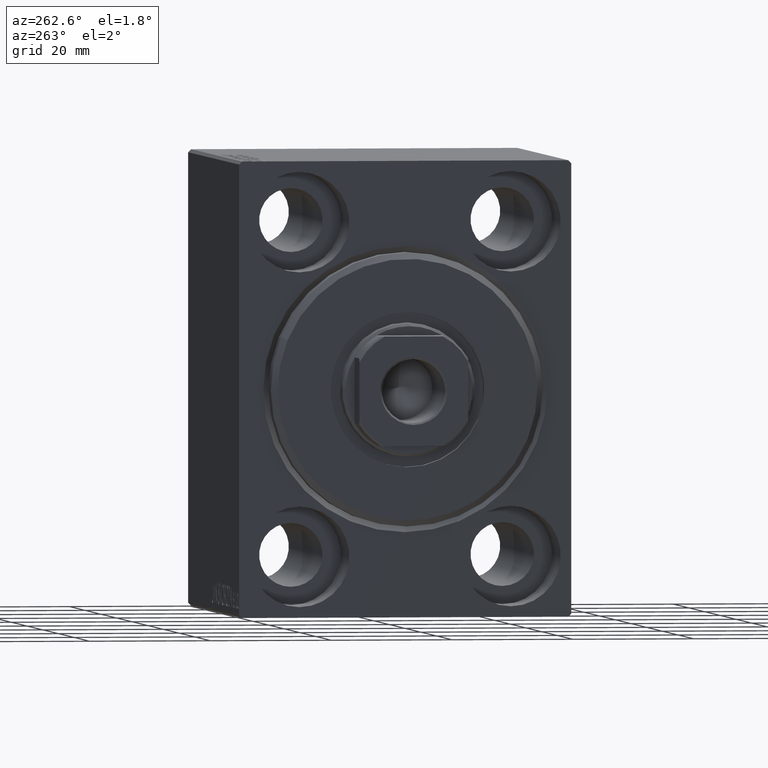
[diagram: clean part render]
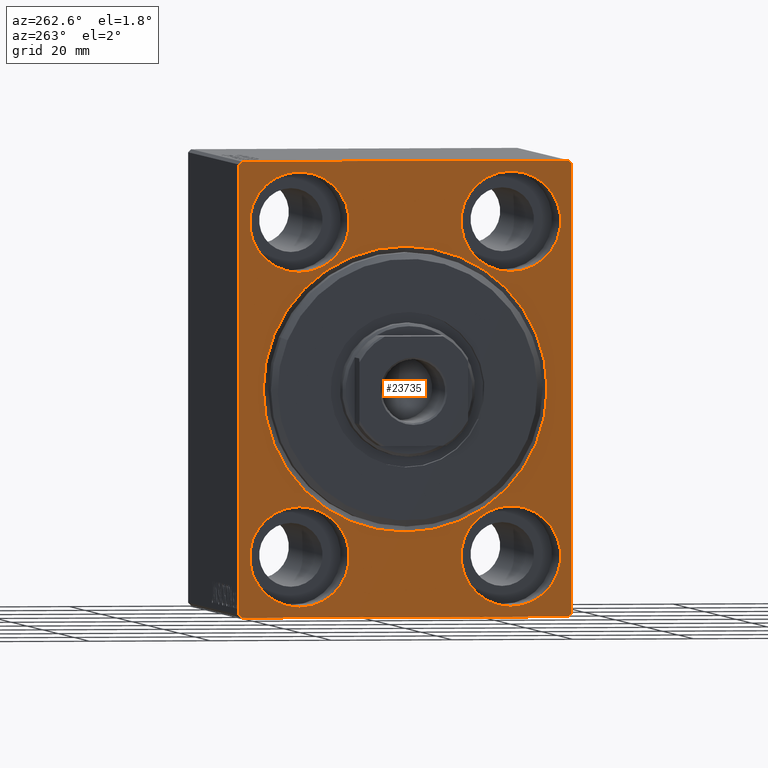
[diagram: same view with one face highlighted and labeled with its STEP entity id]
A machine part, auxiliary view. The second image highlights one B-rep face of the part: STEP entity #23735.
In plain terms, the highlighted planar face has unit normal (1, 0, 0).
Its self-contained STEP definition (entity closure, byte-faithful):
#246 = DIRECTION ( 'NONE',  ( 0.000000000000000000, 0.000000000000000000, 1.000000000000000000 ) ) ;
#478 = EDGE_CURVE ( 'NONE', #21505, #33055, #30573, .T. ) ;
#556 = ORIENTED_EDGE ( 'NONE', *, *, #11781, .T. ) ;
#896 = ORIENTED_EDGE ( 'NONE', *, *, #41385, .F. ) ;
#965 = FACE_BOUND ( 'NONE', #40348, .T. ) ;
#1022 = CARTESIAN_POINT ( 'NONE',  ( 0.000000000000000000, -27.50000000000000355, 37.00000000000001421 ) ) ;
#1216 = VERTEX_POINT ( 'NONE', #14954 ) ;
#1316 = DIRECTION ( 'NONE',  ( -1.000000000000000000, 0.000000000000000000, 0.000000000000000000 ) ) ;
#1453 = VERTEX_POINT ( 'NONE', #18438 ) ;
#1885 = VERTEX_POINT ( 'NONE', #24903 ) ;
#2264 = CARTESIAN_POINT ( 'NONE',  ( 0.000000000000000000, 27.50000000000000355, -37.50000000000000000 ) ) ;
#2432 = AXIS2_PLACEMENT_3D ( 'NONE', #39041, #12392, #17227 ) ;
#2782 = EDGE_CURVE ( 'NONE', #13436, #1453, #7124, .T. ) ;
#3126 = CARTESIAN_POINT ( 'NONE',  ( 0.000000000000000000, -17.49999999999999645, 27.49999999999999645 ) ) ;
#4210 = EDGE_LOOP ( 'NONE', ( #23417, #30986 ) ) ;
#4391 = DIRECTION ( 'NONE',  ( -0.000000000000000000, 0.7071067811865474617, 0.7071067811865474617 ) ) ;
#4675 = EDGE_CURVE ( 'NONE', #9798, #41175, #38373, .T. ) ;
#4750 = DIRECTION ( 'NONE',  ( 0.000000000000000000, 0.000000000000000000, 1.000000000000000000 ) ) ;
#4794 = AXIS2_PLACEMENT_3D ( 'NONE', #31147, #27839, #27416 ) ;
#4827 = EDGE_CURVE ( 'NONE', #41175, #9798, #39117, .T. ) ;
#6138 = VECTOR ( 'NONE', #32673, 1000.000000000000000 ) ;
#6391 = CARTESIAN_POINT ( 'NONE',  ( 0.000000000000000000, 27.00000000000001066, 37.50000000000000711 ) ) ;
#6756 = EDGE_LOOP ( 'NONE', ( #17562, #31209 ) ) ;
#6757 = CARTESIAN_POINT ( 'NONE',  ( 0.000000000000000000, -17.49999999999999645, 35.74999999999999289 ) ) ;
#6829 = VERTEX_POINT ( 'NONE', #39412 ) ;
#7124 = LINE ( 'NONE', #7778, #34129 ) ;
#7193 = DIRECTION ( 'NONE',  ( -1.000000000000000000, 0.000000000000000000, 0.000000000000000000 ) ) ;
#7778 = CARTESIAN_POINT ( 'NONE',  ( 0.000000000000000000, 27.50000000000000355, -37.00000000000000000 ) ) ;
#7990 = EDGE_CURVE ( 'NONE', #6829, #32191, #40576, .T. ) ;
#8162 = AXIS2_PLACEMENT_3D ( 'NONE', #43406, #39451, #39879 ) ;
#8223 = VECTOR ( 'NONE', #23816, 1000.000000000000000 ) ;
#8770 = VERTEX_POINT ( 'NONE', #16069 ) ;
#9032 = CIRCLE ( 'NONE', #40595, 8.250000000000000000 ) ;
#9407 = DIRECTION ( 'NONE',  ( -1.000000000000000000, 0.000000000000000000, 0.000000000000000000 ) ) ;
#9566 = DIRECTION ( 'NONE',  ( 0.000000000000000000, 0.000000000000000000, -1.000000000000000000 ) ) ;
#9798 = VERTEX_POINT ( 'NONE', #20332 ) ;
#9994 = LINE ( 'NONE', #43256, #40599 ) ;
#10263 = CARTESIAN_POINT ( 'NONE',  ( 0.000000000000000000, -17.50000000000000355, -35.75000000000000711 ) ) ;
#10571 = DIRECTION ( 'NONE',  ( 0.000000000000000000, 1.000000000000000000, 0.000000000000000000 ) ) ;
#11121 = FACE_OUTER_BOUND ( 'NONE', #23636, .T. ) ;
#11227 = VERTEX_POINT ( 'NONE', #6757 ) ;
#11334 = CARTESIAN_POINT ( 'NONE',  ( 0.000000000000000000, 0.000000000000000000, 0.000000000000000000 ) ) ;
#11781 = EDGE_CURVE ( 'NONE', #8770, #1216, #29952, .T. ) ;
#11981 = DIRECTION ( 'NONE',  ( 0.000000000000000000, -9.251858538542970348E-17, 1.000000000000000000 ) ) ;
#12392 = DIRECTION ( 'NONE',  ( -1.000000000000000000, 0.000000000000000000, 0.000000000000000000 ) ) ;
#12640 = CIRCLE ( 'NONE', #2432, 8.249999999999992895 ) ;
#12834 = VERTEX_POINT ( 'NONE', #39290 ) ;
#12872 = CARTESIAN_POINT ( 'NONE',  ( 0.000000000000000000, -27.50000000000000355, 37.50000000000000000 ) ) ;
#13063 = CARTESIAN_POINT ( 'NONE',  ( 0.000000000000000000, 27.50000000000000355, -37.00000000000000000 ) ) ;
#13436 = VERTEX_POINT ( 'NONE', #13063 ) ;
#14631 = EDGE_CURVE ( 'NONE', #8770, #12834, #19250, .T. ) ;
#14646 = FACE_BOUND ( 'NONE', #42191, .T. ) ;
#14954 = CARTESIAN_POINT ( 'NONE',  ( 0.000000000000000000, 27.49999999999999645, 37.00000000000001421 ) ) ;
#15632 = CARTESIAN_POINT ( 'NONE',  ( 0.000000000000000000, 17.50000000000000355, 19.25000000000000000 ) ) ;
#15853 = ORIENTED_EDGE ( 'NONE', *, *, #2782, .T. ) ;
#16069 = CARTESIAN_POINT ( 'NONE',  ( 0.000000000000000000, 27.00000000000001066, 37.50000000000000711 ) ) ;
#16783 = VERTEX_POINT ( 'NONE', #17842 ) ;
#16902 = DIRECTION ( 'NONE',  ( 0.000000000000000000, 0.000000000000000000, 1.000000000000000000 ) ) ;
#17227 = DIRECTION ( 'NONE',  ( 0.000000000000000000, 0.000000000000000000, 1.000000000000000000 ) ) ;
#17474 = CARTESIAN_POINT ( 'NONE',  ( 0.000000000000000000, 0.000000000000000000, 0.000000000000000000 ) ) ;
#17562 = ORIENTED_EDGE ( 'NONE', *, *, #20249, .F. ) ;
#17842 = CARTESIAN_POINT ( 'NONE',  ( 0.000000000000000000, -17.49999999999999645, 19.25000000000000000 ) ) ;
#18279 = CARTESIAN_POINT ( 'NONE',  ( 0.000000000000000000, -27.50000000000000355, 37.00000000000001421 ) ) ;
#18438 = CARTESIAN_POINT ( 'NONE',  ( 0.000000000000000000, 27.00000000000000355, -37.50000000000000000 ) ) ;
#19202 = DIRECTION ( 'NONE',  ( 0.000000000000000000, 0.000000000000000000, 1.000000000000000000 ) ) ;
#19250 = LINE ( 'NONE', #42375, #6138 ) ;
#19397 = EDGE_CURVE ( 'NONE', #24300, #12834, #34564, .T. ) ;
#19528 = ORIENTED_EDGE ( 'NONE', *, *, #29872, .F. ) ;
#20209 = CARTESIAN_POINT ( 'NONE',  ( 0.000000000000000000, -17.50000000000000355, -27.50000000000000355 ) ) ;
#20219 = EDGE_CURVE ( 'NONE', #16783, #11227, #12640, .T. ) ;
#20249 = EDGE_CURVE ( 'NONE', #11227, #16783, #29809, .T. ) ;
#20283 = LINE ( 'NONE', #27324, #23926 ) ;
#20332 = CARTESIAN_POINT ( 'NONE',  ( 0.000000000000000000, 2.877919977996282293E-15, -23.50000000000001776 ) ) ;
#20647 = DIRECTION ( 'NONE',  ( 0.000000000000000000, 0.000000000000000000, 1.000000000000000000 ) ) ;
#21041 = VERTEX_POINT ( 'NONE', #22990 ) ;
#21063 = VECTOR ( 'NONE', #9566, 1000.000000000000000 ) ;
#21100 = ORIENTED_EDGE ( 'NONE', *, *, #4827, .T. ) ;
#21379 = CARTESIAN_POINT ( 'NONE',  ( 0.000000000000000000, 17.49999999999999645, -27.50000000000000355 ) ) ;
#21475 = AXIS2_PLACEMENT_3D ( 'NONE', #11334, #24577, #31818 ) ;
#21505 = VERTEX_POINT ( 'NONE', #36346 ) ;
#21705 = FACE_BOUND ( 'NONE', #6756, .T. ) ;
#22990 = CARTESIAN_POINT ( 'NONE',  ( 0.000000000000000000, -27.50000000000000355, -37.00000000000000000 ) ) ;
#23417 = ORIENTED_EDGE ( 'NONE', *, *, #478, .F. ) ;
#23636 = EDGE_LOOP ( 'NONE', ( #24381, #38671, #43012, #556, #896, #15853, #39313, #39228 ) ) ;
#23735 = ADVANCED_FACE ( 'NONE', ( #14646, #41507, #21705, #965, #27859, #11121 ), #35116, .F. ) ;
#23816 = DIRECTION ( 'NONE',  ( -0.000000000000000000, 0.7071067811865426878, -0.7071067811865524577 ) ) ;
#23890 = DIRECTION ( 'NONE',  ( 0.000000000000000000, -0.7071067811865474617, -0.7071067811865474617 ) ) ;
#23926 = VECTOR ( 'NONE', #10571, 1000.000000000000000 ) ;
#24300 = VERTEX_POINT ( 'NONE', #1022 ) ;
#24381 = ORIENTED_EDGE ( 'NONE', *, *, #40464, .F. ) ;
#24577 = DIRECTION ( 'NONE',  ( 1.000000000000000000, 0.000000000000000000, 0.000000000000000000 ) ) ;
#24903 = CARTESIAN_POINT ( 'NONE',  ( 0.000000000000000000, -27.00000000000000355, -37.50000000000000000 ) ) ;
#25988 = AXIS2_PLACEMENT_3D ( 'NONE', #36278, #9407, #16902 ) ;
#27324 = CARTESIAN_POINT ( 'NONE',  ( 0.000000000000000000, -27.50000000000000355, -37.50000000000000000 ) ) ;
#27416 = DIRECTION ( 'NONE',  ( 0.000000000000000000, 0.000000000000000000, 1.000000000000000000 ) ) ;
#27839 = DIRECTION ( 'NONE',  ( -1.000000000000000000, 0.000000000000000000, 0.000000000000000000 ) ) ;
#27859 = FACE_BOUND ( 'NONE', #4210, .T. ) ;
#28130 = VECTOR ( 'NONE', #11981, 1000.000000000000000 ) ;
#28205 = DIRECTION ( 'NONE',  ( 0.000000000000000000, 0.000000000000000000, 1.000000000000000000 ) ) ;
#29000 = CARTESIAN_POINT ( 'NONE',  ( 0.000000000000000000, 17.50000000000000355, 35.74999999999999289 ) ) ;
#29157 = AXIS2_PLACEMENT_3D ( 'NONE', #20209, #7193, #20647 ) ;
#29421 = VERTEX_POINT ( 'NONE', #15632 ) ;
#29809 = CIRCLE ( 'NONE', #43174, 8.249999999999992895 ) ;
#29872 = EDGE_CURVE ( 'NONE', #29421, #43443, #30031, .T. ) ;
#29952 = LINE ( 'NONE', #6391, #8223 ) ;
#30031 = CIRCLE ( 'NONE', #39865, 8.249999999999992895 ) ;
#30038 = CARTESIAN_POINT ( 'NONE',  ( 0.000000000000000000, 0.000000000000000000, 23.50000000000001776 ) ) ;
#30124 = EDGE_CURVE ( 'NONE', #1885, #21041, #9994, .T. ) ;
#30191 = CIRCLE ( 'NONE', #25988, 8.249999999999992895 ) ;
#30327 = ORIENTED_EDGE ( 'NONE', *, *, #40925, .F. ) ;
#30443 = DIRECTION ( 'NONE',  ( -1.000000000000000000, 0.000000000000000000, 0.000000000000000000 ) ) ;
#30573 = CIRCLE ( 'NONE', #29157, 8.250000000000000000 ) ;
#30903 = ORIENTED_EDGE ( 'NONE', *, *, #7990, .F. ) ;
#30975 = VECTOR ( 'NONE', #4391, 1000.000000000000114 ) ;
#30986 = ORIENTED_EDGE ( 'NONE', *, *, #34375, .F. ) ;
#31147 = CARTESIAN_POINT ( 'NONE',  ( 0.000000000000000000, 17.49999999999999645, -27.50000000000000355 ) ) ;
#31209 = ORIENTED_EDGE ( 'NONE', *, *, #20219, .F. ) ;
#31818 = DIRECTION ( 'NONE',  ( 0.000000000000000000, 0.000000000000000000, -1.000000000000000000 ) ) ;
#32191 = VERTEX_POINT ( 'NONE', #35738 ) ;
#32205 = CIRCLE ( 'NONE', #4794, 8.250000000000000000 ) ;
#32673 = DIRECTION ( 'NONE',  ( 0.000000000000000000, -1.000000000000000000, -1.261617073437677999E-16 ) ) ;
#33055 = VERTEX_POINT ( 'NONE', #10263 ) ;
#34129 = VECTOR ( 'NONE', #23890, 1000.000000000000114 ) ;
#34375 = EDGE_CURVE ( 'NONE', #33055, #21505, #9032, .T. ) ;
#34564 = LINE ( 'NONE', #18279, #30975 ) ;
#34630 = DIRECTION ( 'NONE',  ( 1.000000000000000000, 0.000000000000000000, 0.000000000000000000 ) ) ;
#34843 = DIRECTION ( 'NONE',  ( 0.000000000000000000, 0.000000000000000000, -1.000000000000000000 ) ) ;
#34921 = DIRECTION ( 'NONE',  ( -1.000000000000000000, 0.000000000000000000, 0.000000000000000000 ) ) ;
#35116 = PLANE ( 'NONE',  #21475 ) ;
#35738 = CARTESIAN_POINT ( 'NONE',  ( 0.000000000000000000, 17.49999999999999645, -19.25000000000000355 ) ) ;
#36257 = AXIS2_PLACEMENT_3D ( 'NONE', #17474, #34630, #34843 ) ;
#36278 = CARTESIAN_POINT ( 'NONE',  ( 0.000000000000000000, 17.50000000000000355, 27.49999999999999645 ) ) ;
#36346 = CARTESIAN_POINT ( 'NONE',  ( 0.000000000000000000, -17.50000000000000355, -19.25000000000000355 ) ) ;
#36361 = DIRECTION ( 'NONE',  ( -1.000000000000000000, 0.000000000000000000, 0.000000000000000000 ) ) ;
#36679 = EDGE_CURVE ( 'NONE', #32191, #6829, #32205, .T. ) ;
#37774 = AXIS2_PLACEMENT_3D ( 'NONE', #21379, #1316, #28205 ) ;
#38365 = CARTESIAN_POINT ( 'NONE',  ( 0.000000000000000000, -17.50000000000000355, -27.50000000000000355 ) ) ;
#38373 = CIRCLE ( 'NONE', #36257, 23.50000000000001776 ) ;
#38671 = ORIENTED_EDGE ( 'NONE', *, *, #19397, .T. ) ;
#38842 = LINE ( 'NONE', #2264, #28130 ) ;
#39041 = CARTESIAN_POINT ( 'NONE',  ( 0.000000000000000000, -17.49999999999999645, 27.49999999999999645 ) ) ;
#39117 = CIRCLE ( 'NONE', #8162, 23.50000000000001776 ) ;
#39228 = ORIENTED_EDGE ( 'NONE', *, *, #30124, .T. ) ;
#39290 = CARTESIAN_POINT ( 'NONE',  ( 0.000000000000000000, -27.00000000000001776, 37.50000000000000000 ) ) ;
#39313 = ORIENTED_EDGE ( 'NONE', *, *, #42160, .F. ) ;
#39412 = CARTESIAN_POINT ( 'NONE',  ( 0.000000000000000000, 17.49999999999999645, -35.75000000000000711 ) ) ;
#39451 = DIRECTION ( 'NONE',  ( 1.000000000000000000, 0.000000000000000000, 0.000000000000000000 ) ) ;
#39614 = ORIENTED_EDGE ( 'NONE', *, *, #4675, .T. ) ;
#39865 = AXIS2_PLACEMENT_3D ( 'NONE', #41532, #34921, #4750 ) ;
#39879 = DIRECTION ( 'NONE',  ( 0.000000000000000000, 0.000000000000000000, -1.000000000000000000 ) ) ;
#39960 = LINE ( 'NONE', #12872, #21063 ) ;
#40348 = EDGE_LOOP ( 'NONE', ( #30327, #19528 ) ) ;
#40464 = EDGE_CURVE ( 'NONE', #24300, #21041, #39960, .T. ) ;
#40576 = CIRCLE ( 'NONE', #37774, 8.250000000000000000 ) ;
#40595 = AXIS2_PLACEMENT_3D ( 'NONE', #38365, #36361, #19202 ) ;
#40599 = VECTOR ( 'NONE', #43041, 1000.000000000000114 ) ;
#40672 = ORIENTED_EDGE ( 'NONE', *, *, #36679, .F. ) ;
#40925 = EDGE_CURVE ( 'NONE', #43443, #29421, #30191, .T. ) ;
#41175 = VERTEX_POINT ( 'NONE', #30038 ) ;
#41385 = EDGE_CURVE ( 'NONE', #13436, #1216, #38842, .T. ) ;
#41507 = FACE_BOUND ( 'NONE', #42787, .T. ) ;
#41532 = CARTESIAN_POINT ( 'NONE',  ( 0.000000000000000000, 17.50000000000000355, 27.49999999999999645 ) ) ;
#42160 = EDGE_CURVE ( 'NONE', #1885, #1453, #20283, .T. ) ;
#42191 = EDGE_LOOP ( 'NONE', ( #21100, #39614 ) ) ;
#42375 = CARTESIAN_POINT ( 'NONE',  ( 0.000000000000000000, 27.49999999999999645, 37.50000000000000711 ) ) ;
#42787 = EDGE_LOOP ( 'NONE', ( #40672, #30903 ) ) ;
#43012 = ORIENTED_EDGE ( 'NONE', *, *, #14631, .F. ) ;
#43041 = DIRECTION ( 'NONE',  ( -0.000000000000000000, -0.7071067811865474617, 0.7071067811865474617 ) ) ;
#43174 = AXIS2_PLACEMENT_3D ( 'NONE', #3126, #30443, #246 ) ;
#43256 = CARTESIAN_POINT ( 'NONE',  ( 0.000000000000000000, -27.00000000000000355, -37.50000000000000000 ) ) ;
#43406 = CARTESIAN_POINT ( 'NONE',  ( 0.000000000000000000, 0.000000000000000000, 0.000000000000000000 ) ) ;
#43443 = VERTEX_POINT ( 'NONE', #29000 ) ;